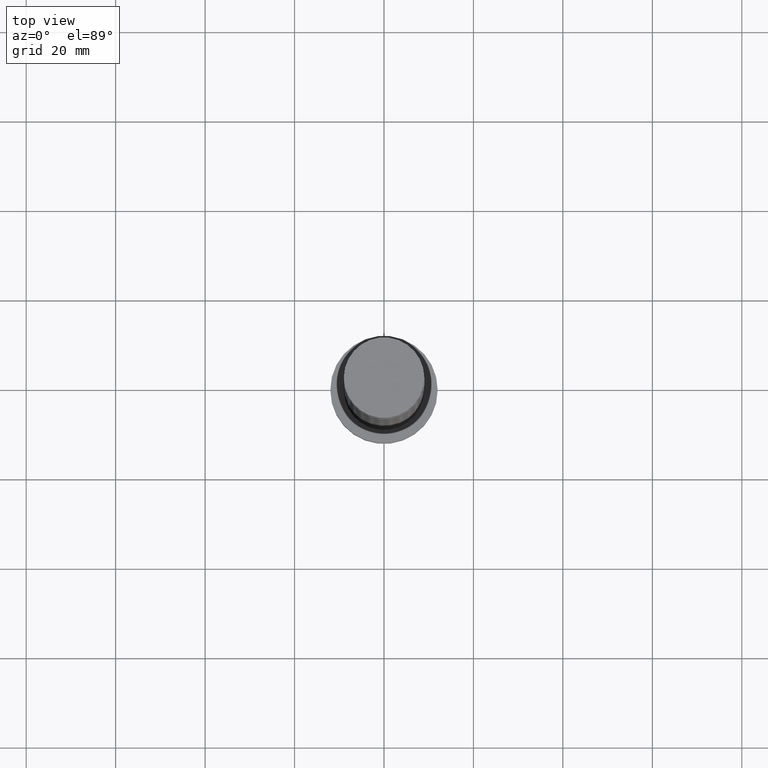
[diagram: clean part render]
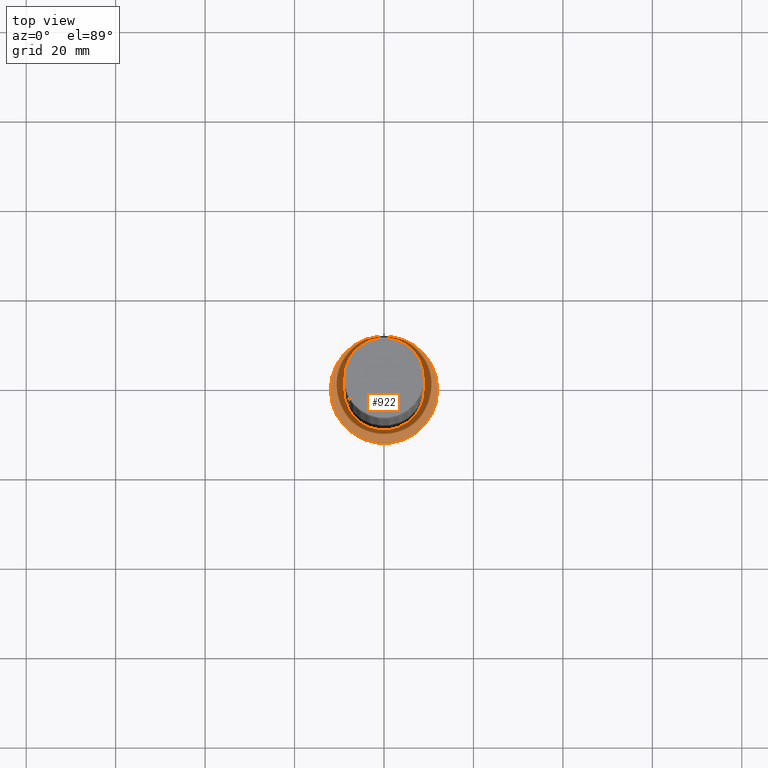
[diagram: same view with one face highlighted and labeled with its STEP entity id]
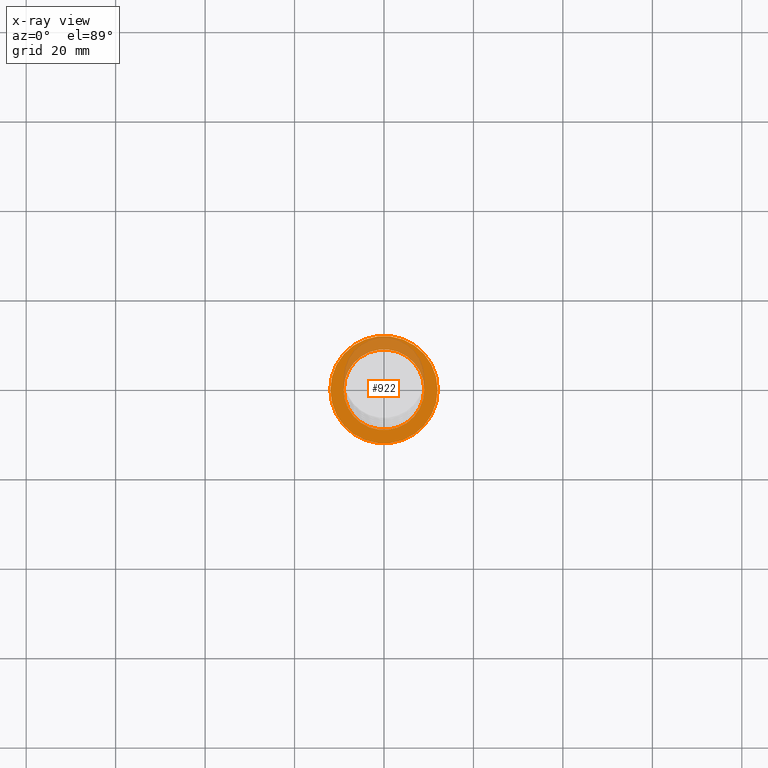
[diagram: x-ray of the same camera — body ghosted, the highlighted face saturated]
A machine part, top view. The second image highlights one B-rep face of the part: STEP entity #922.
The next image is the same camera in x-ray: the body ghosted, the highlighted face saturated — about 25% of this face is hidden behind the body in this view.
In plain terms, the highlighted planar face has unit normal (0, 0, 1).
Its self-contained STEP definition (entity closure, byte-faithful):
#97 = EDGE_CURVE ( 'NONE', #910, #772, #561, .T. ) ;
#127 = FACE_OUTER_BOUND ( 'NONE', #1475, .T. ) ;
#148 = DIRECTION ( 'NONE',  ( 0.000000000000000000, 0.000000000000000000, 1.000000000000000000 ) ) ;
#169 = CIRCLE ( 'NONE', #1128, 9.000000000000000000 ) ;
#170 = EDGE_LOOP ( 'NONE', ( #460, #375 ) ) ;
#228 = DIRECTION ( 'NONE',  ( 1.000000000000000000, 0.000000000000000000, -0.000000000000000000 ) ) ;
#336 = AXIS2_PLACEMENT_3D ( 'NONE', #1445, #1509, #228 ) ;
#351 = ORIENTED_EDGE ( 'NONE', *, *, #990, .T. ) ;
#363 = EDGE_CURVE ( 'NONE', #1139, #898, #169, .T. ) ;
#375 = ORIENTED_EDGE ( 'NONE', *, *, #363, .F. ) ;
#410 = CARTESIAN_POINT ( 'NONE',  ( -12.00000000000000178, 0.000000000000000000, 7.000000000000000000 ) ) ;
#460 = ORIENTED_EDGE ( 'NONE', *, *, #1346, .F. ) ;
#528 = DIRECTION ( 'NONE',  ( 1.000000000000000000, 0.000000000000000000, 0.000000000000000000 ) ) ;
#530 = PLANE ( 'NONE',  #336 ) ;
#561 = CIRCLE ( 'NONE', #1498, 12.00000000000000178 ) ;
#772 = VERTEX_POINT ( 'NONE', #774 ) ;
#774 = CARTESIAN_POINT ( 'NONE',  ( 12.00000000000000178, 1.469576158976824144E-15, 7.000000000000000000 ) ) ;
#792 = DIRECTION ( 'NONE',  ( 0.000000000000000000, 0.000000000000000000, 1.000000000000000000 ) ) ;
#811 = CARTESIAN_POINT ( 'NONE',  ( -9.000000000000000000, 0.000000000000000000, 7.000000000000000000 ) ) ;
#898 = VERTEX_POINT ( 'NONE', #811 ) ;
#910 = VERTEX_POINT ( 'NONE', #410 ) ;
#915 = AXIS2_PLACEMENT_3D ( 'NONE', #1092, #1576, #1076 ) ;
#922 = ADVANCED_FACE ( 'NONE', ( #1392, #127 ), #530, .T. ) ;
#931 = CARTESIAN_POINT ( 'NONE',  ( 0.000000000000000000, 0.000000000000000000, 7.000000000000000000 ) ) ;
#990 = EDGE_CURVE ( 'NONE', #772, #910, #1326, .T. ) ;
#1055 = AXIS2_PLACEMENT_3D ( 'NONE', #931, #792, #528 ) ;
#1073 = CARTESIAN_POINT ( 'NONE',  ( 0.000000000000000000, 0.000000000000000000, 7.000000000000000000 ) ) ;
#1076 = DIRECTION ( 'NONE',  ( 1.000000000000000000, 0.000000000000000000, 0.000000000000000000 ) ) ;
#1092 = CARTESIAN_POINT ( 'NONE',  ( 0.000000000000000000, 0.000000000000000000, 7.000000000000000000 ) ) ;
#1101 = DIRECTION ( 'NONE',  ( 0.000000000000000000, 0.000000000000000000, 1.000000000000000000 ) ) ;
#1128 = AXIS2_PLACEMENT_3D ( 'NONE', #1624, #1101, #1484 ) ;
#1139 = VERTEX_POINT ( 'NONE', #1360 ) ;
#1186 = DIRECTION ( 'NONE',  ( 1.000000000000000000, 0.000000000000000000, 0.000000000000000000 ) ) ;
#1326 = CIRCLE ( 'NONE', #915, 12.00000000000000178 ) ;
#1346 = EDGE_CURVE ( 'NONE', #898, #1139, #1500, .T. ) ;
#1360 = CARTESIAN_POINT ( 'NONE',  ( 9.000000000000000000, 1.102182119232617714E-15, 7.000000000000000000 ) ) ;
#1392 = FACE_BOUND ( 'NONE', #170, .T. ) ;
#1445 = CARTESIAN_POINT ( 'NONE',  ( 0.000000000000000000, 0.000000000000000000, 7.000000000000000000 ) ) ;
#1475 = EDGE_LOOP ( 'NONE', ( #1617, #351 ) ) ;
#1484 = DIRECTION ( 'NONE',  ( 1.000000000000000000, 0.000000000000000000, 0.000000000000000000 ) ) ;
#1498 = AXIS2_PLACEMENT_3D ( 'NONE', #1073, #148, #1186 ) ;
#1500 = CIRCLE ( 'NONE', #1055, 9.000000000000000000 ) ;
#1509 = DIRECTION ( 'NONE',  ( 0.000000000000000000, 0.000000000000000000, 1.000000000000000000 ) ) ;
#1576 = DIRECTION ( 'NONE',  ( 0.000000000000000000, 0.000000000000000000, 1.000000000000000000 ) ) ;
#1617 = ORIENTED_EDGE ( 'NONE', *, *, #97, .T. ) ;
#1624 = CARTESIAN_POINT ( 'NONE',  ( 0.000000000000000000, 0.000000000000000000, 7.000000000000000000 ) ) ;